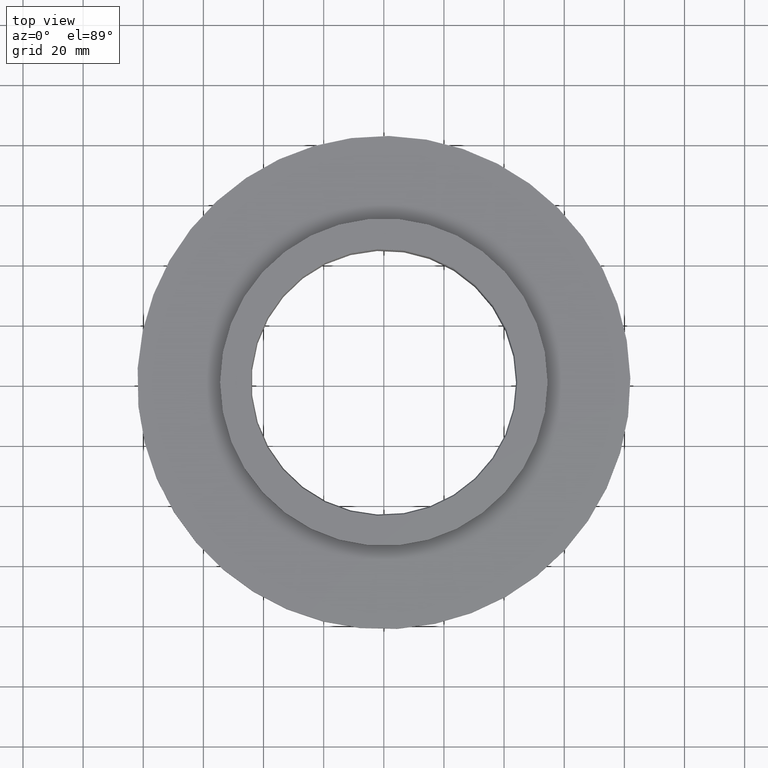
[diagram: clean part render]
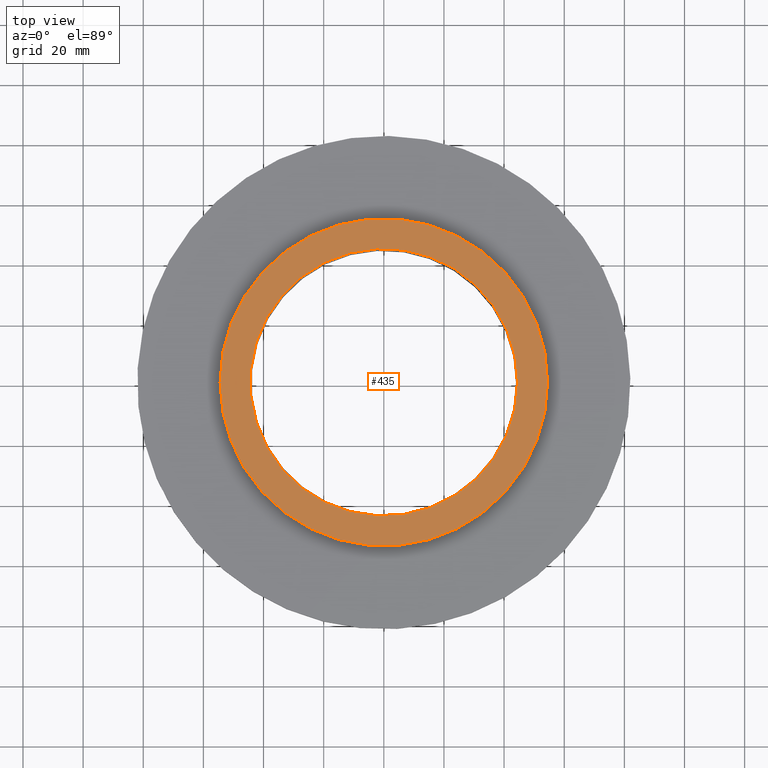
[diagram: same view with one face highlighted and labeled with its STEP entity id]
A machine part, top view. The second image highlights one B-rep face of the part: STEP entity #435.
In plain terms, the highlighted planar face has unit normal (0, 0, 1).
Its self-contained STEP definition (entity closure, byte-faithful):
#320=CARTESIAN_POINT('',(54.45000000000001,-3.194574E-015,73.099999999999994));
#321=VERTEX_POINT('',#320);
#322=CARTESIAN_POINT('',(8.757893E-015,-3.194574E-015,73.100000000000009));
#323=DIRECTION('',(0.0,0.0,-1.0));
#324=DIRECTION('',(1.0,0.0,0.0));
#325=AXIS2_PLACEMENT_3D('',#322,#323,#324);
#326=CIRCLE('',#325,54.450000000000003);
#327=EDGE_CURVE('',#321,#321,#326,.T.);
#412=CARTESIAN_POINT('',(44.450000000000003,-3.194574E-015,73.099999999999994));
#413=VERTEX_POINT('',#412);
#414=CARTESIAN_POINT('',(8.757893E-015,-3.194574E-015,73.100000000000009));
#415=DIRECTION('',(0.0,0.0,-1.0));
#416=DIRECTION('',(1.0,0.0,0.0));
#417=AXIS2_PLACEMENT_3D('',#414,#415,#416);
#418=CIRCLE('',#417,44.449999999999996);
#419=EDGE_CURVE('',#413,#413,#418,.T.);
#424=CARTESIAN_POINT('',(49.45000000000001,-3.194574E-015,73.099999999999994));
#425=DIRECTION('',(0.0,0.0,1.0));
#426=DIRECTION('',(0.0,-1.0,0.0));
#427=AXIS2_PLACEMENT_3D('',#424,#425,#426);
#428=PLANE('',#427);
#429=ORIENTED_EDGE('',*,*,#327,.F.);
#430=EDGE_LOOP('',(#429));
#431=FACE_OUTER_BOUND('',#430,.T.);
#432=ORIENTED_EDGE('',*,*,#419,.T.);
#433=EDGE_LOOP('',(#432));
#434=FACE_BOUND('',#433,.T.);
#435=ADVANCED_FACE('',(#431,#434),#428,.T.);